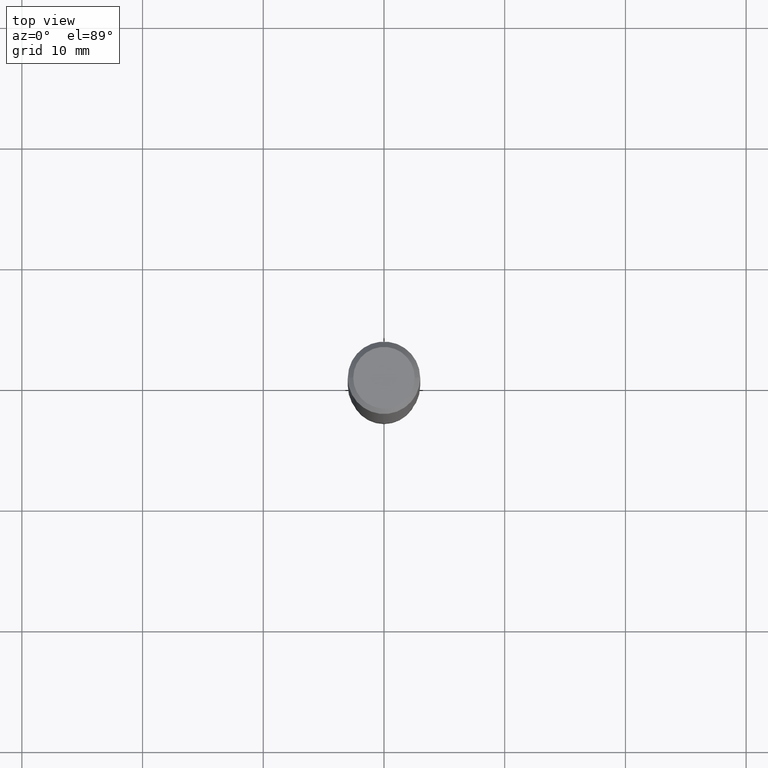
[diagram: clean part render]
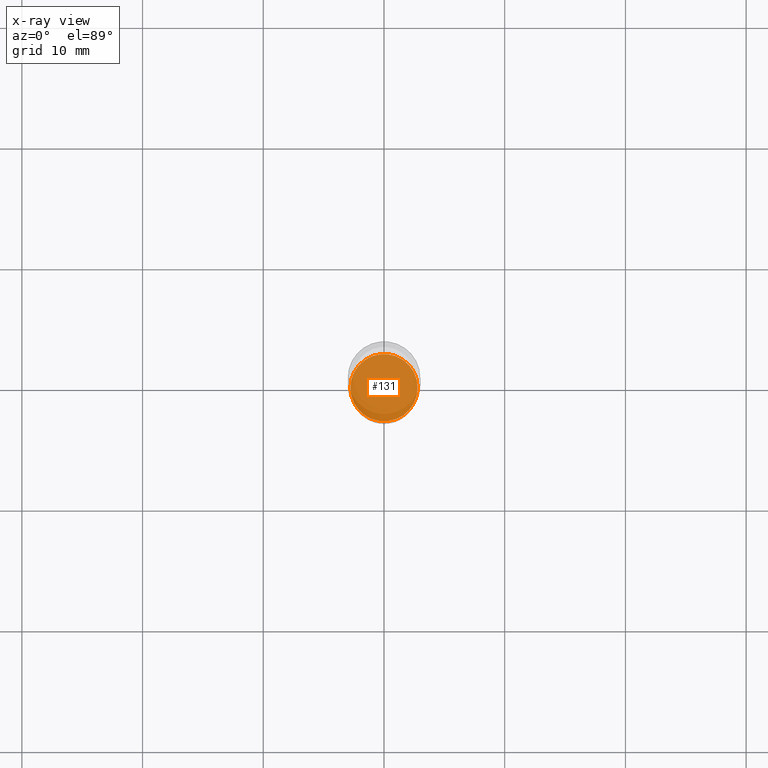
[diagram: x-ray — body ghosted, one internal face saturated and labeled with its STEP entity id]
A machine part, top view, then the same camera in x-ray: the body is ghosted and one INTERNAL B-rep face — a face not visible from any outside direction — is saturated and labeled: STEP entity #131.
In plain terms, the highlighted planar face has unit normal (-0, 0, 1).
Its self-contained STEP definition (entity closure, byte-faithful):
#13 = ORIENTED_EDGE ( 'NONE', *, *, #244, .F. ) ;
#21 = VERTEX_POINT ( 'NONE', #112 ) ;
#40 = CARTESIAN_POINT ( 'NONE',  ( 4.622425137451146006E-29, -6.599598026681314782E-15, -1.890200000000000324 ) ) ;
#94 = EDGE_LOOP ( 'NONE', ( #13, #102 ) ) ;
#102 = ORIENTED_EDGE ( 'NONE', *, *, #149, .F. ) ;
#110 = AXIS2_PLACEMENT_3D ( 'NONE', #366, #147, #221 ) ;
#112 = CARTESIAN_POINT ( 'NONE',  ( 0.1097500000000000003, -7.365978180557383248E-15, -1.890200000000000324 ) ) ;
#121 = DIRECTION ( 'NONE',  ( 1.000000000000000000, -6.982962677686265922E-15, 4.876176775795935793E-29 ) ) ;
#131 = ADVANCED_FACE ( 'NONE', ( #229 ), #265, .F. ) ;
#135 = AXIS2_PLACEMENT_3D ( 'NONE', #328, #256, #121 ) ;
#136 = CARTESIAN_POINT ( 'NONE',  ( -0.1097500000000000003, -5.817128147010494315E-15, -1.890200000000000324 ) ) ;
#147 = DIRECTION ( 'NONE',  ( -2.445468806185136597E-29, 3.491481338843145583E-15, 1.000000000000000000 ) ) ;
#149 = EDGE_CURVE ( 'NONE', #300, #21, #390, .T. ) ;
#184 = DIRECTION ( 'NONE',  ( 1.000000000000000000, -6.982962677686264344E-15, 0.000000000000000000 ) ) ;
#221 = DIRECTION ( 'NONE',  ( 1.000000000000000000, -6.982962677686264344E-15, 0.000000000000000000 ) ) ;
#229 = FACE_OUTER_BOUND ( 'NONE', #94, .T. ) ;
#244 = EDGE_CURVE ( 'NONE', #21, #300, #310, .T. ) ;
#256 = DIRECTION ( 'NONE',  ( -2.438088387897960049E-29, 3.491481338843145188E-15, 1.000000000000000000 ) ) ;
#265 = PLANE ( 'NONE',  #135 ) ;
#267 = DIRECTION ( 'NONE',  ( -2.445468806185136597E-29, 3.491481338843145583E-15, 1.000000000000000000 ) ) ;
#300 = VERTEX_POINT ( 'NONE', #136 ) ;
#310 = CIRCLE ( 'NONE', #110, 0.1097500000000000003 ) ;
#328 = CARTESIAN_POINT ( 'NONE',  ( 4.622425137451146006E-29, -6.599598026681314782E-15, -1.890200000000000324 ) ) ;
#366 = CARTESIAN_POINT ( 'NONE',  ( 4.622425137451146006E-29, -6.599598026681314782E-15, -1.890200000000000324 ) ) ;
#379 = AXIS2_PLACEMENT_3D ( 'NONE', #40, #267, #184 ) ;
#390 = CIRCLE ( 'NONE', #379, 0.1097500000000000003 ) ;